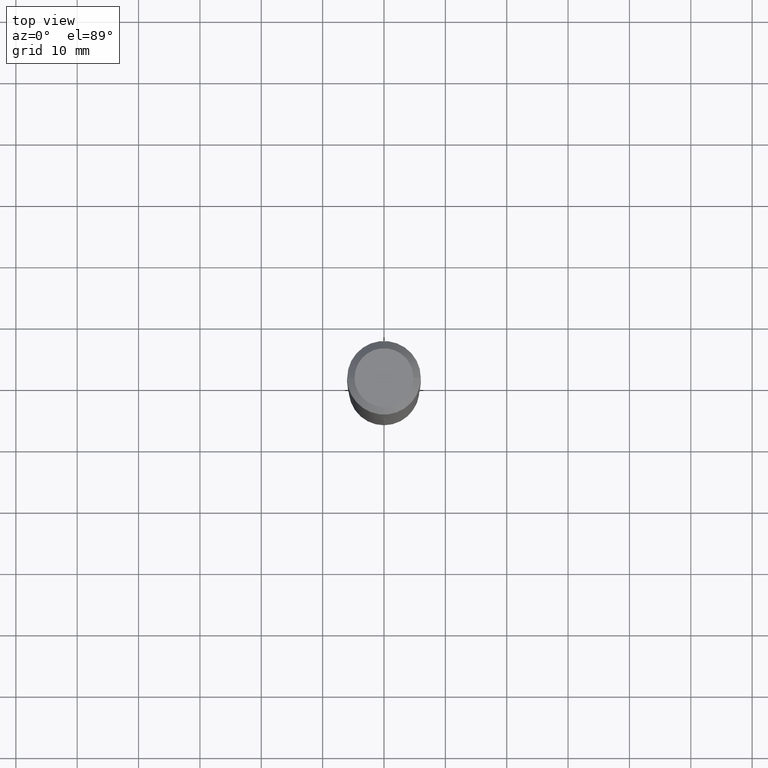
[diagram: clean part render]
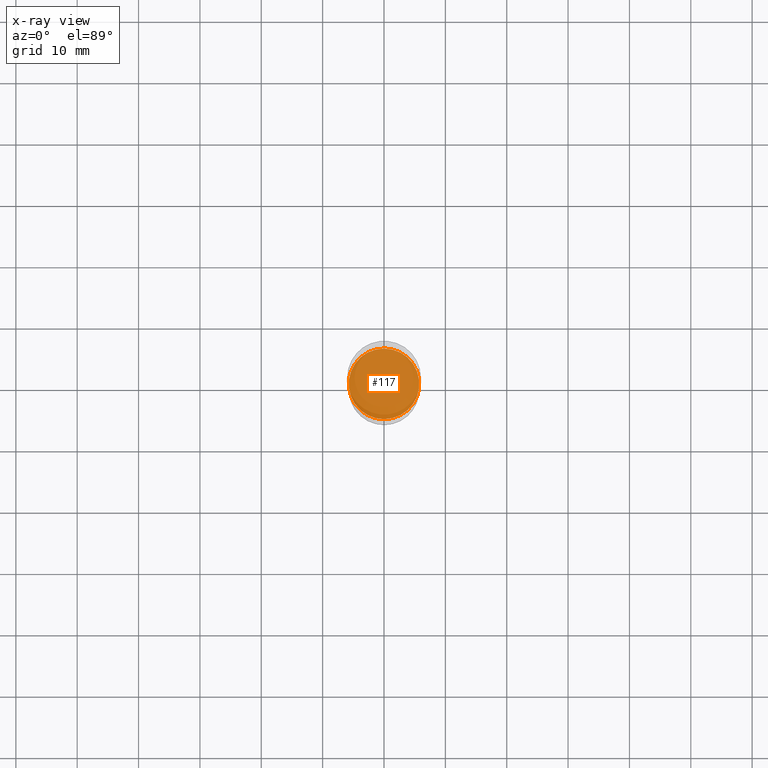
[diagram: x-ray — body ghosted, one internal face saturated and labeled with its STEP entity id]
A machine part, top view, then the same camera in x-ray: the body is ghosted and one INTERNAL B-rep face — a face not visible from any outside direction — is saturated and labeled: STEP entity #117.
In plain terms, the highlighted planar face has unit normal (0, -0, -1).
Its self-contained STEP definition (entity closure, byte-faithful):
#1 = CARTESIAN_POINT ( 'NONE',  ( 1.608668753760977191E-15, 0.2263999999999919133, -2.303200000000000358 ) ) ;
#41 = DIRECTION ( 'NONE',  ( 6.982962677686265922E-15, 1.000000000000000000, -3.491508799059314559E-15 ) ) ;
#55 = EDGE_LOOP ( 'NONE', ( #350, #207 ) ) ;
#79 = FACE_OUTER_BOUND ( 'NONE', #55, .T. ) ;
#94 = CIRCLE ( 'NONE', #340, 0.2263999999999999624 ) ;
#112 = CARTESIAN_POINT ( 'NONE',  ( -1.580942750228114224E-15, -0.2264000000000080115, -2.303199999999998582 ) ) ;
#117 = ADVANCED_FACE ( 'NONE', ( #79 ), #235, .F. ) ;
#144 = EDGE_CURVE ( 'NONE', #254, #158, #374, .T. ) ;
#145 = DIRECTION ( 'NONE',  ( -2.445449630818674093E-29, 3.491508799059314165E-15, 1.000000000000000000 ) ) ;
#158 = VERTEX_POINT ( 'NONE', #112 ) ;
#161 = AXIS2_PLACEMENT_3D ( 'NONE', #185, #305, #231 ) ;
#185 = CARTESIAN_POINT ( 'NONE',  ( 5.632403754405604963E-29, -8.041579819623531161E-15, -2.303199999999999470 ) ) ;
#207 = ORIENTED_EDGE ( 'NONE', *, *, #144, .T. ) ;
#230 = CARTESIAN_POINT ( 'NONE',  ( 5.632403754405604963E-29, -8.041579819623531161E-15, -2.303199999999999470 ) ) ;
#231 = DIRECTION ( 'NONE',  ( -6.982962677686265922E-15, -1.000000000000000000, 3.619939920933211627E-15 ) ) ;
#235 = PLANE ( 'NONE',  #356 ) ;
#254 = VERTEX_POINT ( 'NONE', #1 ) ;
#303 = CARTESIAN_POINT ( 'NONE',  ( 5.632403754405604963E-29, -8.041579819623531161E-15, -2.303199999999999470 ) ) ;
#305 = DIRECTION ( 'NONE',  ( -2.445449630818674093E-29, 3.491508799059314165E-15, 1.000000000000000000 ) ) ;
#340 = AXIS2_PLACEMENT_3D ( 'NONE', #303, #145, #442 ) ;
#350 = ORIENTED_EDGE ( 'NONE', *, *, #436, .T. ) ;
#356 = AXIS2_PLACEMENT_3D ( 'NONE', #230, #398, #41 ) ;
#374 = CIRCLE ( 'NONE', #161, 0.2263999999999999624 ) ;
#398 = DIRECTION ( 'NONE',  ( 2.445449630818673252E-29, -3.491508799059314559E-15, -1.000000000000000000 ) ) ;
#436 = EDGE_CURVE ( 'NONE', #158, #254, #94, .T. ) ;
#442 = DIRECTION ( 'NONE',  ( -6.982962677686265922E-15, -1.000000000000000000, 3.619939920933211627E-15 ) ) ;